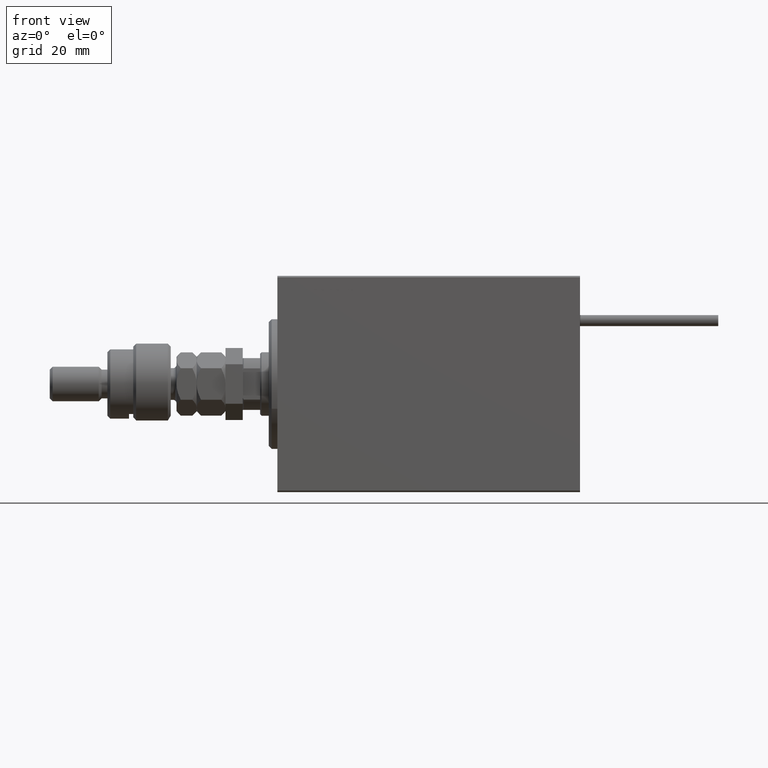
[diagram: clean part render]
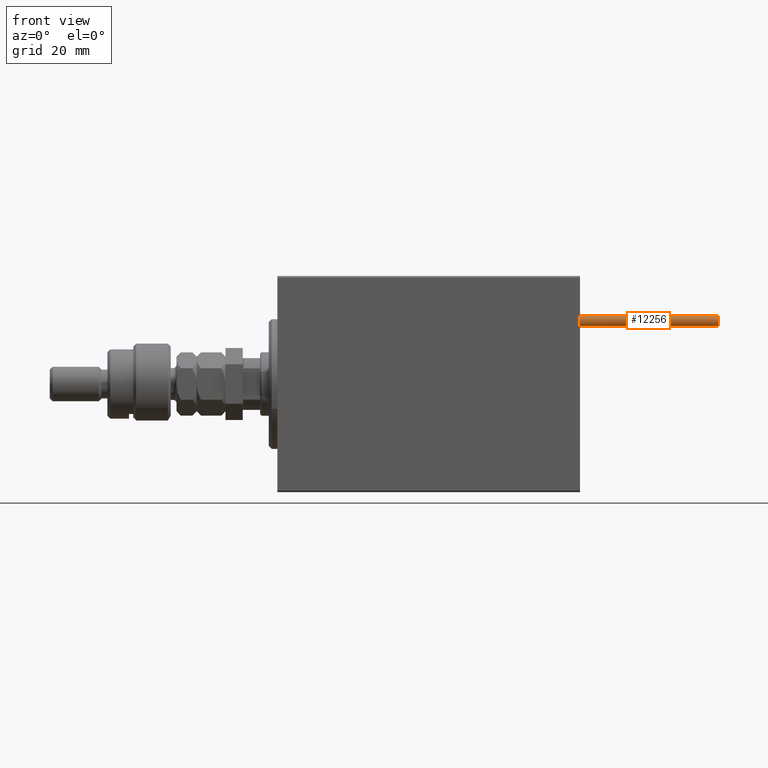
[diagram: same view with one face highlighted and labeled with its STEP entity id]
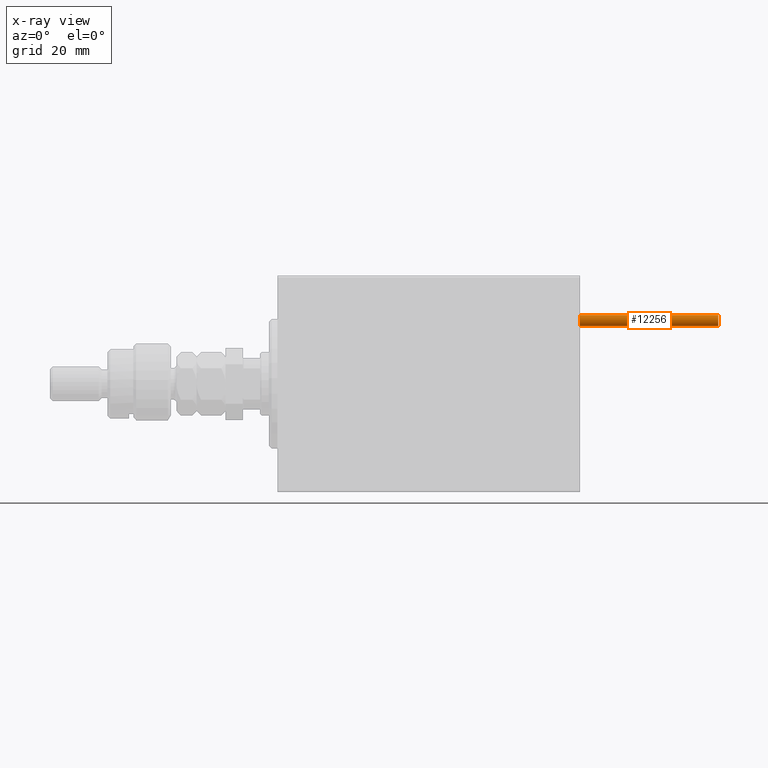
[diagram: x-ray of the same camera — body ghosted, the highlighted face saturated]
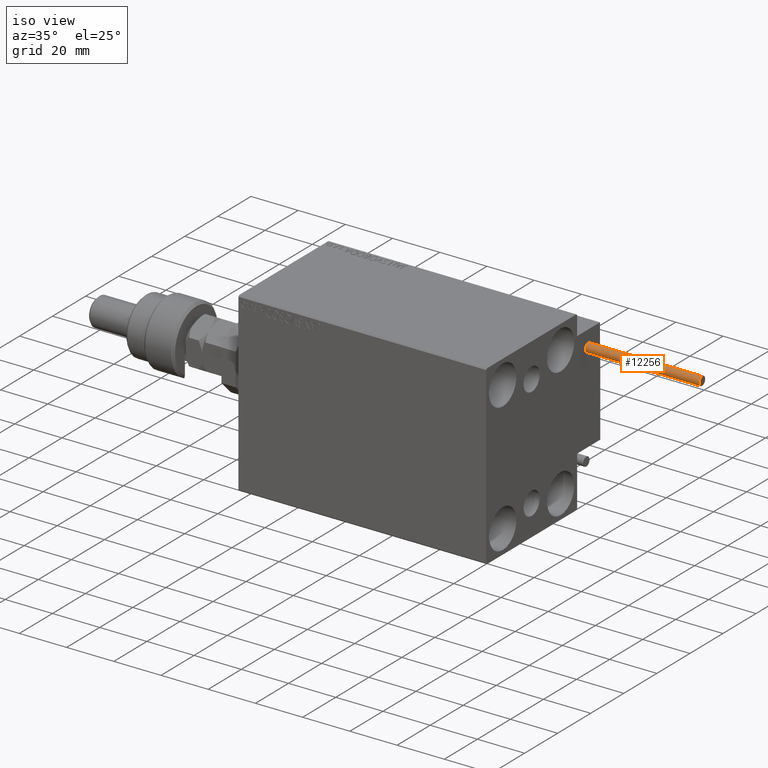
[diagram: same view with one face highlighted and labeled with its STEP entity id]
A machine part, front view. The second image highlights one B-rep face of the part: STEP entity #12256.
The next image is the same camera in x-ray: the body ghosted, the highlighted face saturated — about 0% of this face is hidden behind the body in this view.
A second angle (iso view) of the same face is appended — the face is thin or edge-on in the first view.
In plain terms, the highlighted cylindrical surface (edge-blend (fillet) strip) has radius 1.9 mm, axis along (-1, -0, 0).
Its self-contained STEP definition (entity closure, byte-faithful):
#305 = DIRECTION ( 'NONE',  ( -0.000000000000000000, -0.000000000000000000, -1.000000000000000000 ) ) ;
#2500 = LINE ( 'NONE', #34737, #26989 ) ;
#3696 = VERTEX_POINT ( 'NONE', #5856 ) ;
#4566 = FACE_OUTER_BOUND ( 'NONE', #46343, .T. ) ;
#4926 = VECTOR ( 'NONE', #16289, 1000.000000000000000 ) ;
#5856 = CARTESIAN_POINT ( 'NONE',  ( -1.899999999999999467, 0.000000000000000000, 0.000000000000000000 ) ) ;
#7406 = AXIS2_PLACEMENT_3D ( 'NONE', #9795, #30297, #38293 ) ;
#9091 = CARTESIAN_POINT ( 'NONE',  ( 0.000000000000000000, 0.000000000000000000, 48.00000000000000000 ) ) ;
#9795 = CARTESIAN_POINT ( 'NONE',  ( 0.000000000000000000, 0.000000000000000000, 0.000000000000000000 ) ) ;
#11539 = DIRECTION ( 'NONE',  ( 0.000000000000000000, 0.000000000000000000, 1.000000000000000000 ) ) ;
#12256 = ADVANCED_FACE ( 'NONE', ( #4566 ), #21343, .T. ) ;
#12275 = EDGE_CURVE ( 'NONE', #35458, #3696, #37328, .T. ) ;
#12291 = CARTESIAN_POINT ( 'NONE',  ( -1.899999999999999467, 0.000000000000000000, 48.00000000000000000 ) ) ;
#15794 = CARTESIAN_POINT ( 'NONE',  ( 1.899999999999999467, 2.326828918379970872E-16, 0.000000000000000000 ) ) ;
#16289 = DIRECTION ( 'NONE',  ( -0.000000000000000000, -0.000000000000000000, -1.000000000000000000 ) ) ;
#18472 = CARTESIAN_POINT ( 'NONE',  ( 0.000000000000000000, 0.000000000000000000, 48.00000000000000000 ) ) ;
#18755 = DIRECTION ( 'NONE',  ( -0.000000000000000000, -0.000000000000000000, -1.000000000000000000 ) ) ;
#19139 = EDGE_CURVE ( 'NONE', #35458, #36064, #25440, .T. ) ;
#20376 = CARTESIAN_POINT ( 'NONE',  ( -1.899999999999999467, 0.000000000000000000, 48.00000000000000000 ) ) ;
#21343 = CYLINDRICAL_SURFACE ( 'NONE', #38956, 1.899999999999999467 ) ;
#24029 = ORIENTED_EDGE ( 'NONE', *, *, #41288, .T. ) ;
#24397 = CIRCLE ( 'NONE', #7406, 1.899999999999999467 ) ;
#25440 = CIRCLE ( 'NONE', #31423, 1.899999999999999467 ) ;
#26989 = VECTOR ( 'NONE', #18755, 1000.000000000000000 ) ;
#27779 = DIRECTION ( 'NONE',  ( 1.000000000000000000, 0.000000000000000000, 0.000000000000000000 ) ) ;
#29208 = CARTESIAN_POINT ( 'NONE',  ( 1.899999999999999467, 2.326828918379970872E-16, 48.00000000000000000 ) ) ;
#30297 = DIRECTION ( 'NONE',  ( 0.000000000000000000, 0.000000000000000000, 1.000000000000000000 ) ) ;
#31423 = AXIS2_PLACEMENT_3D ( 'NONE', #18472, #11539, #27779 ) ;
#34737 = CARTESIAN_POINT ( 'NONE',  ( 1.899999999999999467, 2.326828918379970872E-16, 48.00000000000000000 ) ) ;
#35458 = VERTEX_POINT ( 'NONE', #20376 ) ;
#36064 = VERTEX_POINT ( 'NONE', #29208 ) ;
#36563 = ORIENTED_EDGE ( 'NONE', *, *, #19139, .F. ) ;
#37328 = LINE ( 'NONE', #12291, #4926 ) ;
#38293 = DIRECTION ( 'NONE',  ( 1.000000000000000000, 0.000000000000000000, 0.000000000000000000 ) ) ;
#38956 = AXIS2_PLACEMENT_3D ( 'NONE', #9091, #305, #41063 ) ;
#41063 = DIRECTION ( 'NONE',  ( -1.000000000000000000, 0.000000000000000000, 0.000000000000000000 ) ) ;
#41288 = EDGE_CURVE ( 'NONE', #3696, #43169, #24397, .T. ) ;
#43169 = VERTEX_POINT ( 'NONE', #15794 ) ;
#45533 = EDGE_CURVE ( 'NONE', #36064, #43169, #2500, .T. ) ;
#46343 = EDGE_LOOP ( 'NONE', ( #50347, #36563, #51442, #24029 ) ) ;
#50347 = ORIENTED_EDGE ( 'NONE', *, *, #45533, .F. ) ;
#51442 = ORIENTED_EDGE ( 'NONE', *, *, #12275, .T. ) ;